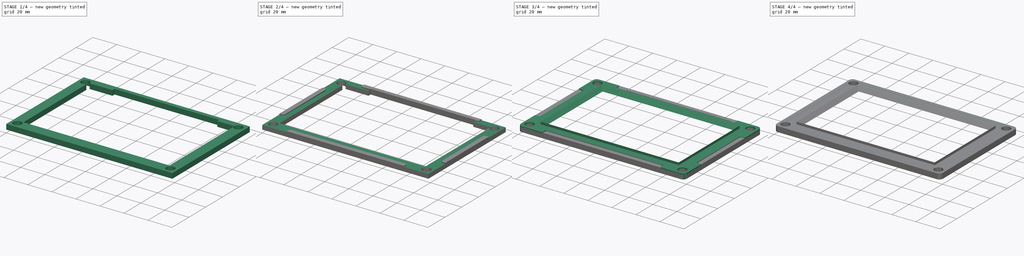
[diagram: build sequence overview — one tinted view per stage of 4, left to right]
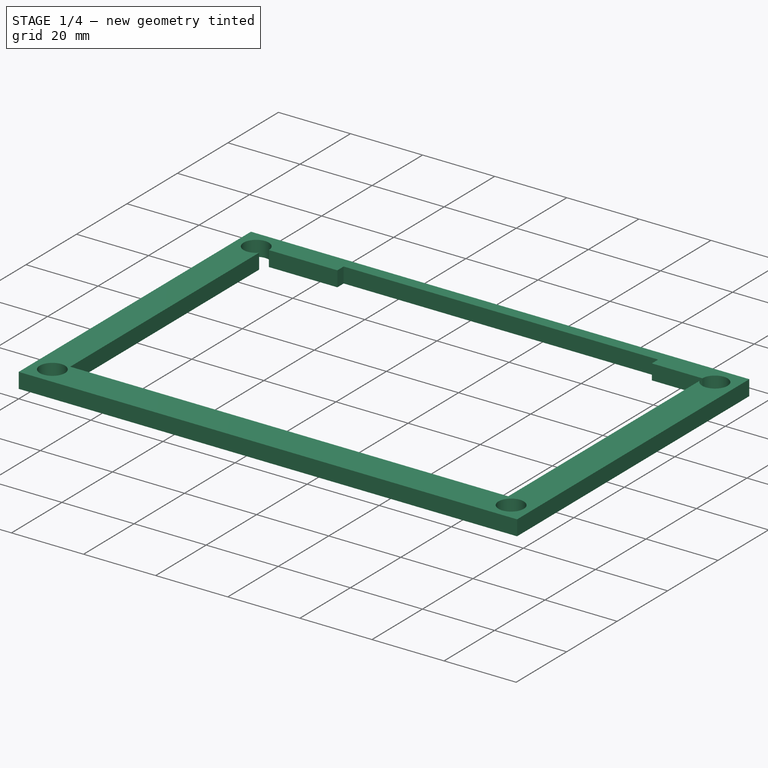
[diagram: stage 1 of 4 — iso view after this stage's code; geometry added in this stage tinted green]
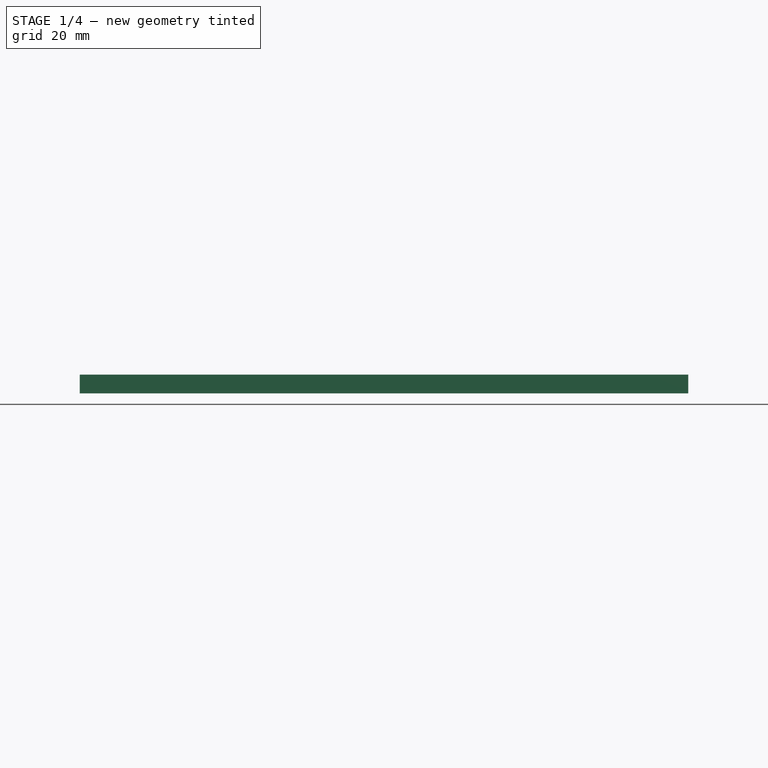
[diagram: stage 1 of 4 — front view after this stage's code; geometry added in this stage tinted green]
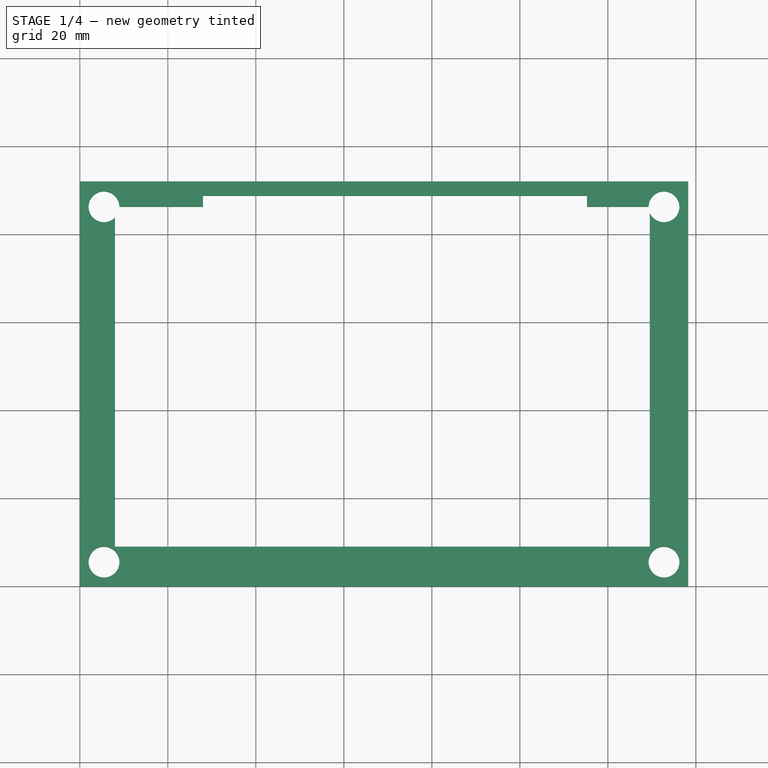
[diagram: stage 1 of 4 — top view after this stage's code; geometry added in this stage tinted green]
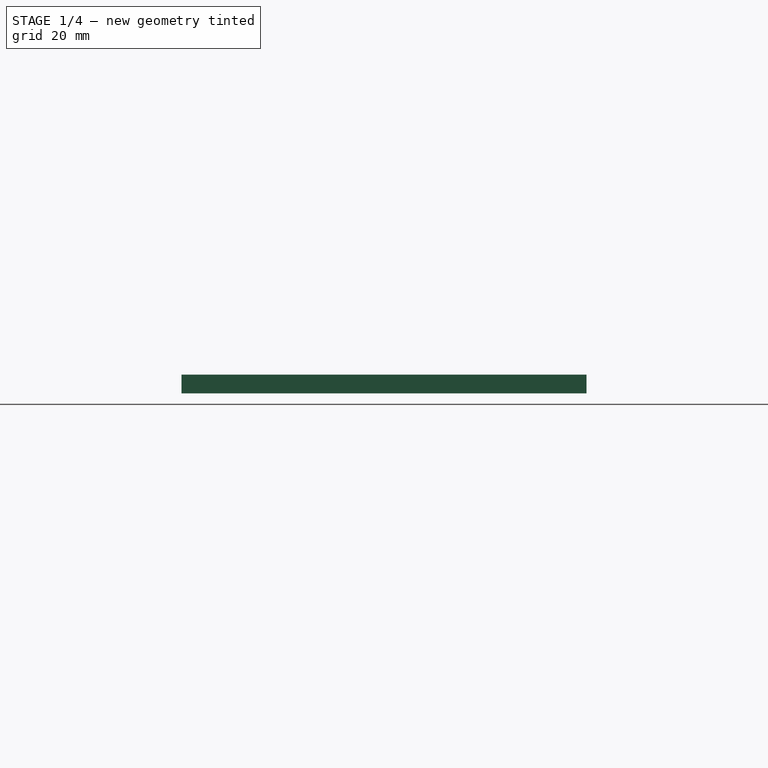
[diagram: stage 1 of 4 — right view after this stage's code; geometry added in this stage tinted green]
FCSTD DOCUMENT  (FreeCAD 0.17R13662 (Git))
Label: LCD_center_v0.2
License: CreativeCommons Attribution-ShareAlike
LicenseURL: http://creativecommons.org/licenses/by-sa/4.0/
objects: App::FeaturePython×4, Part::FeaturePython×3, Sketcher::SketchObject×3, PartDesign::Fillet×3, PartDesign::Pocket×2, PartDesign::Pad×1, PartDesign::Body×1
note: 16 computed .brp shape members not serialized (recipe doc carries the construction recipe); baked Part::Feature solids carry a one-line shape summary decoded from their .brp

FEATURE [App::FeaturePython] circularEdgeConstraint01  label="circularEdgeConstraint01__LCD_bezel_V0_2_01"  # a2plus constraint (typed FeaturePython)
  Object1 = LCD_center_v0_1_01
  Object2 = LCD_bezel_V0_2_01
  SubElement1 = Edge48
  SubElement2 = Edge26
  Type = circularEdge
  directionConstraint = 0
  lockRotation = false
  offset = 0
FEATURE [App::FeaturePython] circularEdgeConstraint01_mirror  label="circularEdgeConstraint01__LCD_center_v0_1_01"  # a2plus constraint (typed FeaturePython)
  Object1 = LCD_center_v0_1_01
  Object2 = LCD_bezel_V0_2_01
  SubElement1 = Edge48
  SubElement2 = Edge26
  Type = circularEdge
  directionConstraint = 0
  lockRotation = false
  offset = 0
FEATURE [Sketcher::SketchObject] Sketch
  MapMode = 5
  Support = -> [XY_Plane]
  sketch-geometry (12):
    g0: LineSegment StartX=0 StartY=0 StartZ=0 EndX=0 EndY=92 EndZ=0
    g1: LineSegment StartX=0 StartY=92 StartZ=0 EndX=138.25 EndY=92 EndZ=0
    g2: LineSegment StartX=28 StartY=86.25 StartZ=0 EndX=8 EndY=86.25 EndZ=0
    g3: LineSegment StartX=8 StartY=86.25 StartZ=0 EndX=8 EndY=9 EndZ=0
    g4: LineSegment StartX=8 StartY=9 StartZ=0 EndX=129.5 EndY=9 EndZ=0
    g5: LineSegment StartX=129.5 StartY=9 StartZ=0 EndX=129.5 EndY=86.25 EndZ=0
    g6: LineSegment StartX=129.5 StartY=86.25 StartZ=0 EndX=115.25 EndY=86.25 EndZ=0
    g7: LineSegment StartX=138.25 StartY=92 StartZ=0 EndX=138.25 EndY=0 EndZ=0
    g8: LineSegment StartX=138.25 StartY=0 StartZ=0 EndX=0 EndY=0 EndZ=0
    g9: LineSegment StartX=28 StartY=86.25 StartZ=0 EndX=28 EndY=88.75 EndZ=0
    g10: LineSegment StartX=28 StartY=88.75 StartZ=0 EndX=115.25 EndY=88.75 EndZ=0
    g11: LineSegment StartX=115.25 StartY=88.75 StartZ=0 EndX=115.25 EndY=86.25 EndZ=0
  constraints (35):
    c: Coincident(g0,g1)
    c: Coincident(g2,g3)
    c: Coincident(g3,g4)
    c: Coincident(g4,g5)
    c: Coincident(g5,g6)
    c: Coincident(g7,g8)
    c: Coincident(g0,g8)
    c: Coincident(g0,g-1)
    c: Vertical(g0)
    c: Horizontal(g8)
    c: Horizontal(g4)
    c: Horizontal(g2)
    c: Horizontal(g1)
    c: Horizontal(g6)
    c: Vertical(g7)
    c: Vertical(g5)
    c: Vertical(g3)
    c: DistanceY(g0,g0) = 92
    c: DistanceY(g-1,g3) = 9
    c: DistanceY(g3,g3) = 77.25
    c: DistanceX(g3) = 8
    c: DistanceX(g4,g4) = 121.5
    c: Equal(g5,g3)
    c: DistanceX(g7) = 138.25
    c: DistanceX(g6,g6) = 14.25
    c: DistanceX(g2,g2) = 20
    c: Coincident(g1,g7)
    c: Coincident(g9,g10)
    c: Coincident(g10,g11)
    c: Coincident(g6,g11)
    c: Coincident(g2,g9)
    c: Vertical(g9)
    c: Vertical(g11)
    c: Horizontal(g10)
    c: DistanceY(g11,g11) = 2.5
FEATURE [PartDesign::Pad] Pad
  Length = 0.75
  Length2 = 3.5
  Profile = -> Sketch
  Type = 4
FEATURE [App::FeaturePython] circularEdgeConstraint02  label="circularEdgeConstraint02__LCD_center_v0_1_01"  # a2plus constraint (typed FeaturePython)
  Object1 = LCD_bezel_V0_3_01
  Object2 = LCD_center_v0_1_01
  SubElement1 = Edge47
  SubElement2 = Edge47
  Type = circularEdge
  directionConstraint = 0
  lockRotation = false
  offset = 0
FEATURE [App::FeaturePython] circularEdgeConstraint02_mirror  label="circularEdgeConstraint02__LCD_bezel_V0_3_01"  # a2plus constraint (typed FeaturePython)
  Object1 = LCD_bezel_V0_3_01
  Object2 = LCD_center_v0_1_01
  SubElement1 = Edge47
  SubElement2 = Edge47
  Type = circularEdge
  directionConstraint = 0
  lockRotation = false
  offset = 0
FEATURE [PartDesign::Pocket] Pocket
  BaseFeature = -> Pad
  Length = 5
  Length2 = 100
  Profile = -> Sketch001
  Type = 0
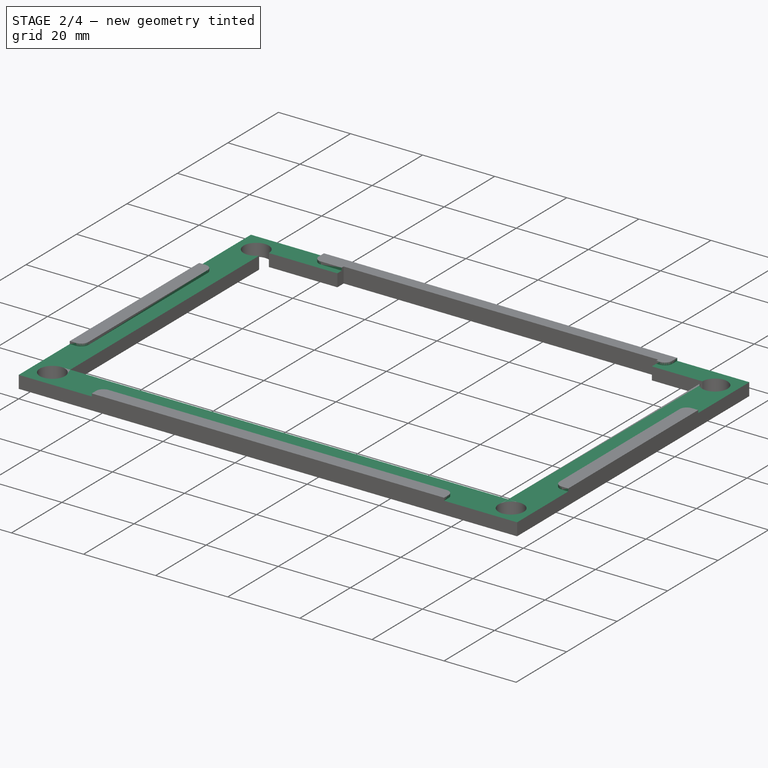
[diagram: stage 2 of 4 — iso view after this stage's code; geometry added in this stage tinted green]
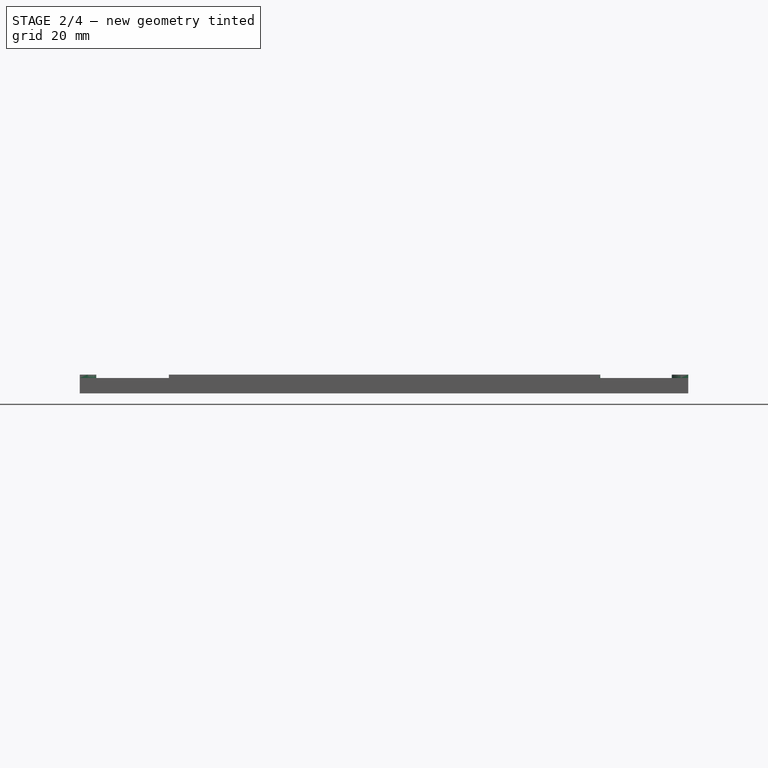
[diagram: stage 2 of 4 — front view after this stage's code; geometry added in this stage tinted green]
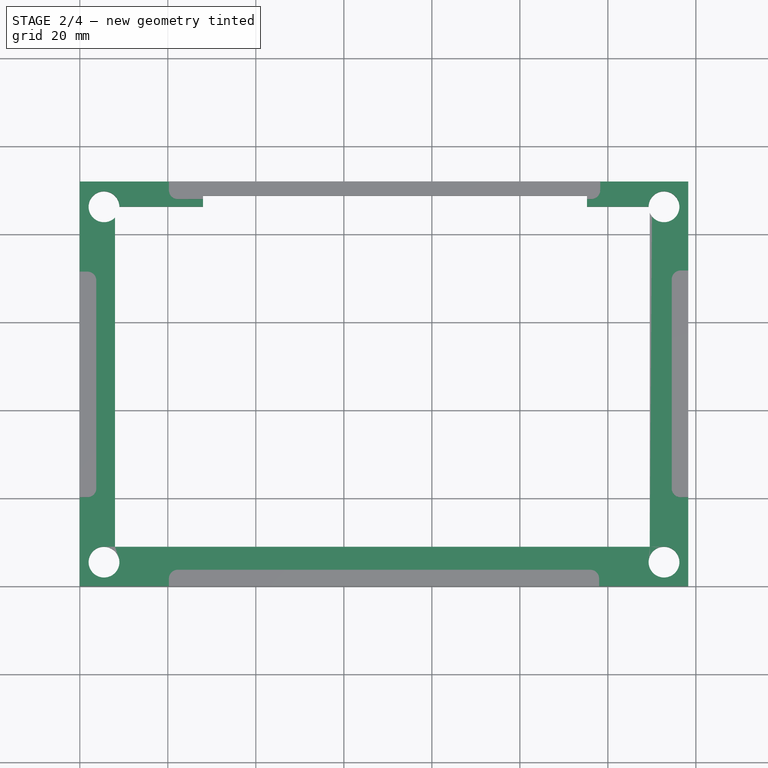
[diagram: stage 2 of 4 — top view after this stage's code; geometry added in this stage tinted green]
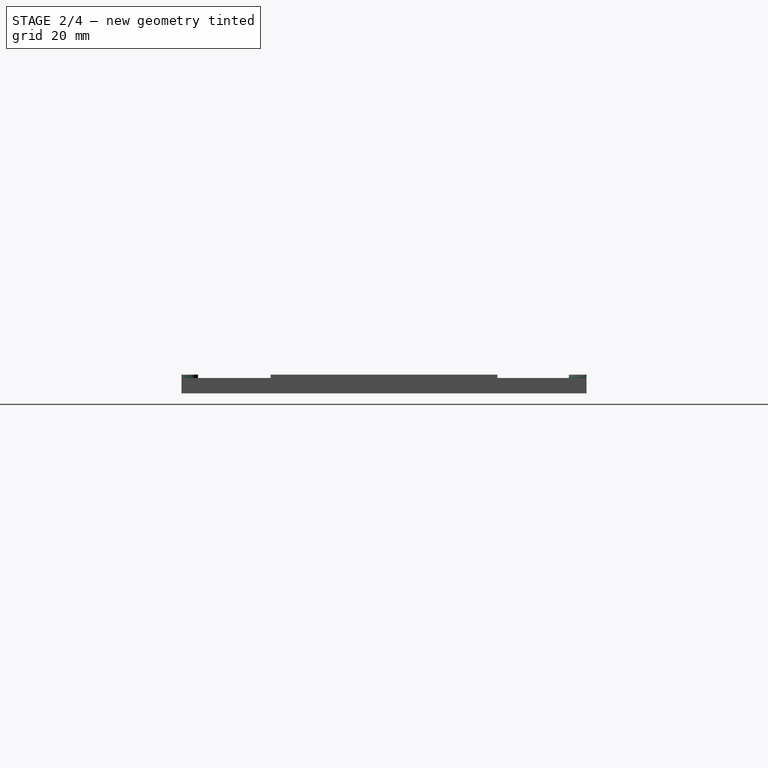
[diagram: stage 2 of 4 — right view after this stage's code; geometry added in this stage tinted green]
FEATURE [PartDesign::Pocket] Pocket001
  BaseFeature = -> Pocket
  Length = 0.75
  Length2 = 100
  Profile = -> Sketch002
  Type = 0
FEATURE [PartDesign::Fillet] Fillet
  Base = -> Pocket001 [Edge96,Edge64,Edge102,Edge98,Edge103,Edge90,Edge95,Edge60]
  BaseFeature = -> Pocket001
  Radius = 2
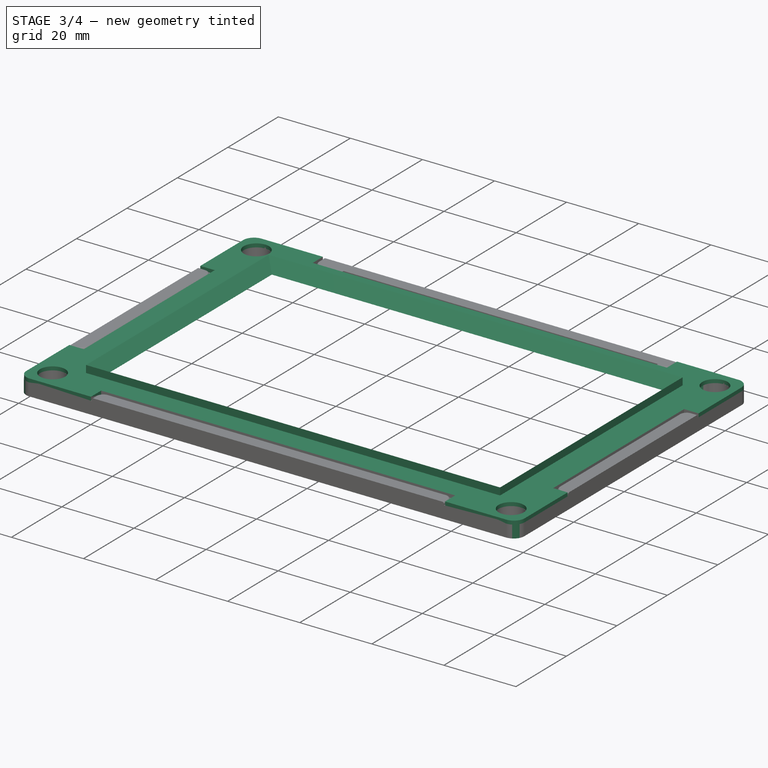
[diagram: stage 3 of 4 — iso view after this stage's code; geometry added in this stage tinted green]
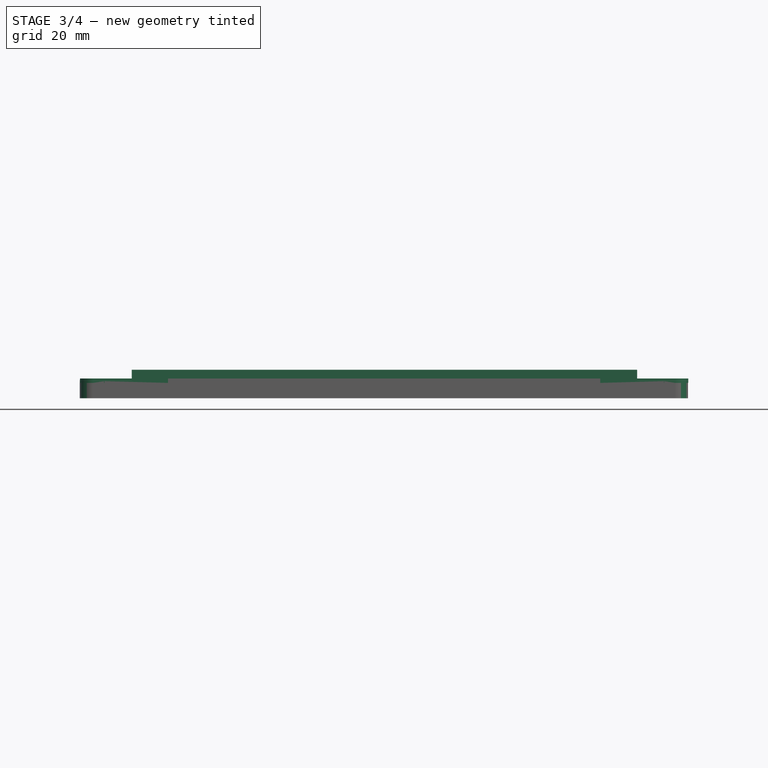
[diagram: stage 3 of 4 — front view after this stage's code; geometry added in this stage tinted green]
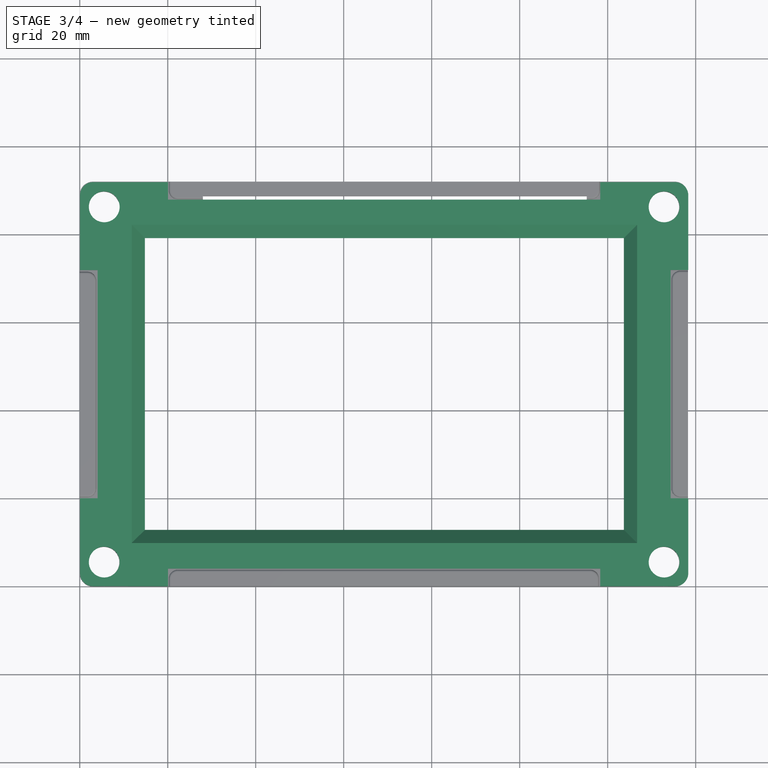
[diagram: stage 3 of 4 — top view after this stage's code; geometry added in this stage tinted green]
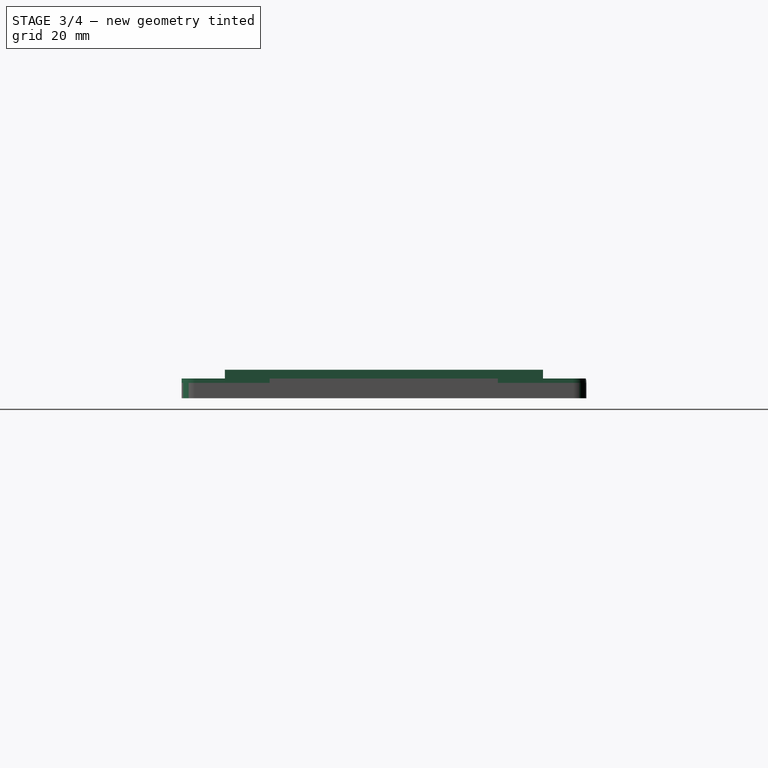
[diagram: stage 3 of 4 — right view after this stage's code; geometry added in this stage tinted green]
FEATURE [Sketcher::SketchObject] Sketch001
  MapMode = 5
  Placement = pos=(0,0,0.75) rot=(0,0,1;0rad)
  Support = -> [Pad]
  sketch-geometry (8):
    g0: LineSegment [constr] StartX=5.5 StartY=86.25 StartZ=0 EndX=132.75 EndY=86.25 EndZ=0
    g1: LineSegment [constr] StartX=132.75 StartY=86.25 StartZ=0 EndX=132.75 EndY=5.5 EndZ=0
    g2: LineSegment [constr] StartX=132.75 StartY=5.5 StartZ=0 EndX=5.5 EndY=5.5 EndZ=0
    g3: LineSegment [constr] StartX=5.5 StartY=5.5 StartZ=0 EndX=5.5 EndY=86.25 EndZ=0
    g4: Circle CenterX=5.5 CenterY=86.25 CenterZ=0 NormalX=0 NormalY=0 NormalZ=1 AngleXU=0 Radius=3.5
    g5: Circle CenterX=132.75 CenterY=86.25 CenterZ=0 NormalX=0 NormalY=0 NormalZ=1 AngleXU=0 Radius=3.5
    g6: Circle CenterX=132.75 CenterY=5.5 CenterZ=0 NormalX=0 NormalY=0 NormalZ=1 AngleXU=0 Radius=3.5
    g7: Circle CenterX=5.5 CenterY=5.5 CenterZ=0 NormalX=0 NormalY=0 NormalZ=1 AngleXU=0 Radius=3.5
  constraints (20):
    c: Coincident(g0,g1)
    c: Coincident(g1,g2)
    c: Coincident(g2,g3)
    c: Coincident(g3,g0)
    c: Horizontal(g0)
    c: Horizontal(g2)
    c: Vertical(g1)
    c: Vertical(g3)
    c: Coincident(g2,g7)
    c: DistanceX(g2) = 5.5
    c: DistanceY(g2) = 5.5
    c: Radius(g7) = 3.5
    c: Coincident(g1,g6)
    c: DistanceX(g2,g2) = 127.25
    c: Equal(g6,g7)
    c: Coincident(g0,g4)
    c: DistanceY(g3,g3) = 80.75
    c: Coincident(g0,g5)
    c: Equal(g5,g4)
    c: Equal(g4,g7)
FEATURE [Sketcher::SketchObject] Sketch002
  MapMode = 5
  Placement = pos=(0,0,0.75) rot=(0,0,1;0rad)
  sketch-geometry (20):
    g0: LineSegment StartX=20.25 StartY=92 StartZ=0 EndX=20.25 EndY=88 EndZ=0
    g1: LineSegment StartX=20.25 StartY=88 StartZ=0 EndX=118.25 EndY=88 EndZ=0
    g2: LineSegment StartX=118.25 StartY=88 StartZ=0 EndX=118.25 EndY=92 EndZ=0
    g3: LineSegment StartX=118.25 StartY=92 StartZ=0 EndX=138.5 EndY=92 EndZ=0
    g4: LineSegment StartX=138.5 StartY=92 StartZ=0 EndX=138.5 EndY=71.75 EndZ=0
    g5: LineSegment StartX=138.5 StartY=71.75 StartZ=0 EndX=134.5 EndY=71.75 EndZ=0
    g6: LineSegment StartX=134.5 StartY=71.75 StartZ=0 EndX=134.5 EndY=20.25 EndZ=0
    g7: LineSegment StartX=134.5 StartY=20.25 StartZ=0 EndX=138.5 EndY=20.25 EndZ=0
    g8: LineSegment StartX=138.5 StartY=20.25 StartZ=0 EndX=138.5 EndY=0 EndZ=0
    g9: LineSegment StartX=138.5 StartY=0 StartZ=0 EndX=118 EndY=0 EndZ=0
    g10: LineSegment StartX=118 StartY=0 StartZ=0 EndX=118 EndY=3.75 EndZ=0
    g11: LineSegment StartX=118 StartY=3.75 StartZ=0 EndX=20.25 EndY=3.75 EndZ=0
    g12: LineSegment StartX=20.25 StartY=3.75 StartZ=0 EndX=20.25 EndY=0 EndZ=0
    g13: LineSegment StartX=20.25 StartY=0 StartZ=0 EndX=0 EndY=0 EndZ=0
    g14: LineSegment StartX=0 StartY=0 StartZ=0 EndX=0 EndY=20.25 EndZ=0
    g15: LineSegment StartX=0 StartY=20.25 StartZ=0 EndX=3.75 EndY=20.25 EndZ=0
    g16: LineSegment StartX=3.75 StartY=20.25 StartZ=0 EndX=3.75 EndY=71.5 EndZ=0
    g17: LineSegment StartX=3.75 StartY=71.5 StartZ=0 EndX=0 EndY=71.5 EndZ=0
    g18: LineSegment StartX=0 StartY=71.5 StartZ=0 EndX=0 EndY=92 EndZ=0
    g19: LineSegment StartX=0 StartY=92 StartZ=0 EndX=20.25 EndY=92 EndZ=0
  constraints (59):
    c: Coincident(g0,g1)
    c: Coincident(g1,g2)
    c: Coincident(g2,g3)
    c: Coincident(g3,g4)
    c: Coincident(g4,g5)
    c: Coincident(g5,g6)
    c: Coincident(g6,g7)
    c: Coincident(g7,g8)
    c: Coincident(g8,g9)
    c: Coincident(g9,g10)
    c: Coincident(g10,g11)
    c: Coincident(g11,g12)
    c: Coincident(g12,g13)
    c: Coincident(g13,g14)
    c: Coincident(g14,g15)
    c: Coincident(g15,g16)
    c: Coincident(g16,g17)
    c: Coincident(g17,g18)
    c: Coincident(g18,g19)
    c: Coincident(g0,g19)
    c: Coincident(g13,g-1)
    c: Vertical(g14)
    c: DistanceY(g14,g14) = 20.25
    c: Horizontal(g15)
    c: DistanceX(g15,g15) = 3.75
    c: Vertical(g16)
    c: Horizontal(g17)
    c: DistanceY(g16,g16) = 51.25
    c: PointOnObject(g17,g-2)
    c: Vertical(g18)
    c: Horizontal(g19)
    c: Vertical(g0)
    c: DistanceY(g18,g18) = 20.5
    c: DistanceX(g19,g19) = 20.25
    c: DistanceY(g0,g0) = 4
    c: Horizontal(g1)
    c: Vertical(g2)
    c: Horizontal(g3)
    c: DistanceX(g1,g1) = 98
    c: Equal(g2,g0)
    c: DistanceX(g3,g3) = 20.25
    c: Vertical(g4)
    c: Horizontal(g5)
    c: DistanceY(g4,g4) = 20.25
    c: DistanceX(g5,g5) = 4
    c: Vertical(g6)
    c: Vertical(g8)
    c: Horizontal(g7)
    c: Horizontal(g9)
    c: Horizontal(g11)
    c: Vertical(g10)
    c: Vertical(g12)
    c: Horizontal(g13)
    c: PointOnObject(g9,g-1)
    c: DistanceX(g8) = 138.5
    c: Equal(g8,g14)
    c: DistanceX(g13,g13) = 20.25
    c: DistanceY(g10,g10) = 3.75
    c: DistanceX(g11,g11) = 97.75
FEATURE [Part::FeaturePython] LCD_bezel_V0_3_01  # a2plus imported part (geometry in sourceFile) (typed FeaturePython)
  Placement = pos=(0.07,0,0) rot=(0,0,1;0rad)
  fixedPosition = false
  sourceFile = <userpath>/Projects/taz-quiver/production_parts/printed_parts/lcd_bezel/LCD_bezel_V0.3.fcstd
  timeLastImport = 1.54759e+09
  updateColors = true
FEATURE [PartDesign::Fillet] Fillet001
  Base = -> Fillet [Edge48,Edge51,Edge72,Edge55,Edge102,Edge95,Edge83,Edge80]
  BaseFeature = -> Fillet
  Radius = 3
FEATURE [PartDesign::Fillet] Fillet002
  Base = -> Fillet001 [Edge137,Edge146,Edge71,Edge77,Edge103]
  BaseFeature = -> Fillet001
  Radius = 0.5
FEATURE [PartDesign::Body] Body
  Group = -> [Sketch,Pad,Sketch001,Sketch002,Pocket,Pocket001,Fillet,Fillet001,Fillet002]
  Origin = -> Origin
  Tip = -> Fillet002
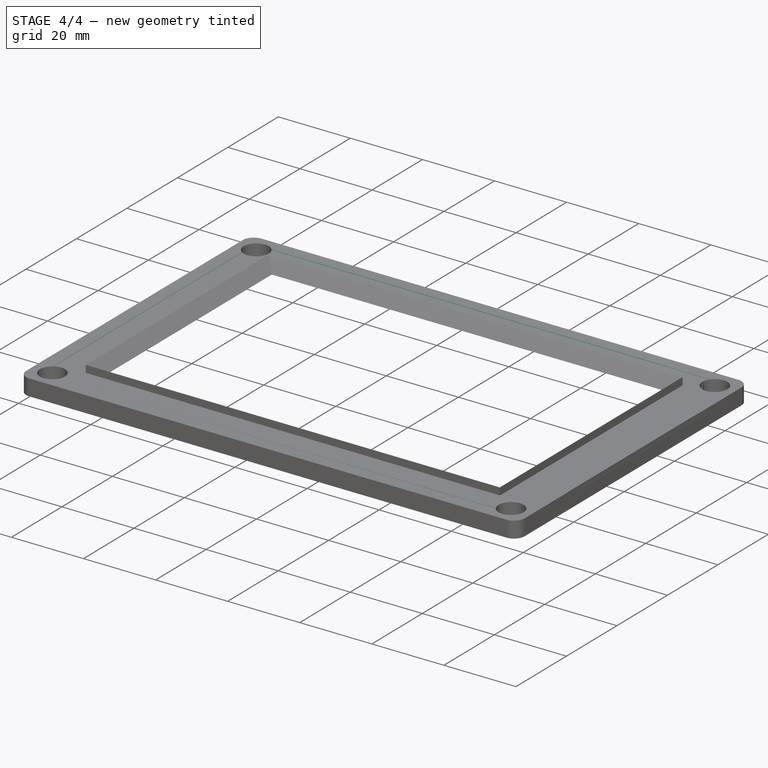
[diagram: stage 4 of 4 — iso view after this stage's code; geometry added in this stage tinted green]
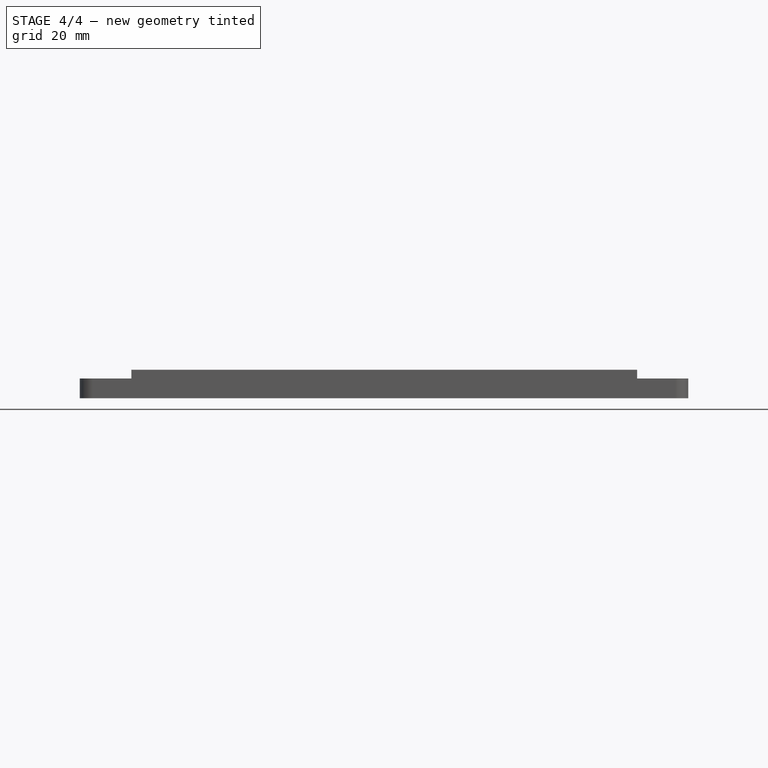
[diagram: stage 4 of 4 — front view after this stage's code; geometry added in this stage tinted green]
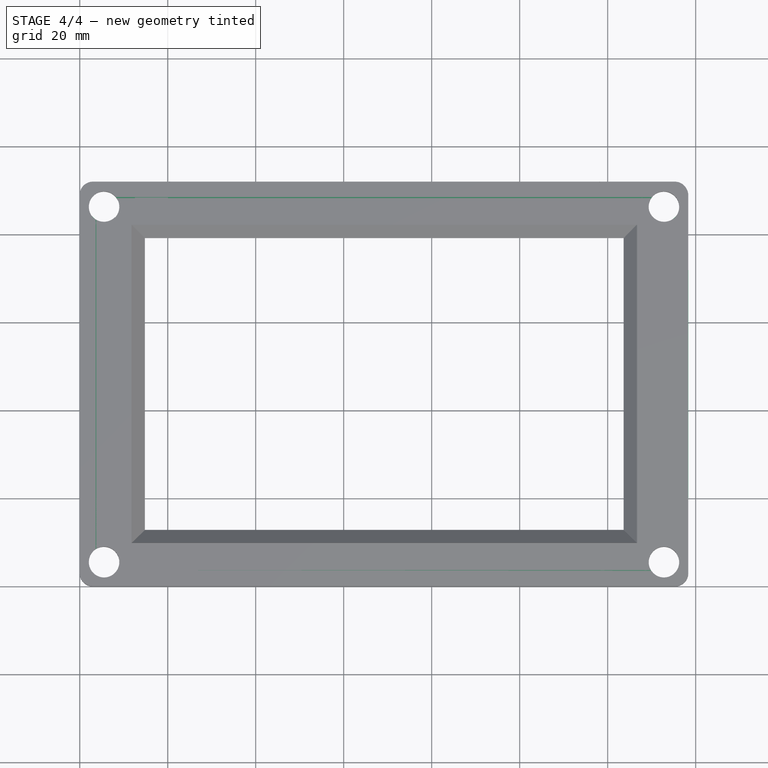
[diagram: stage 4 of 4 — top view after this stage's code; geometry added in this stage tinted green]
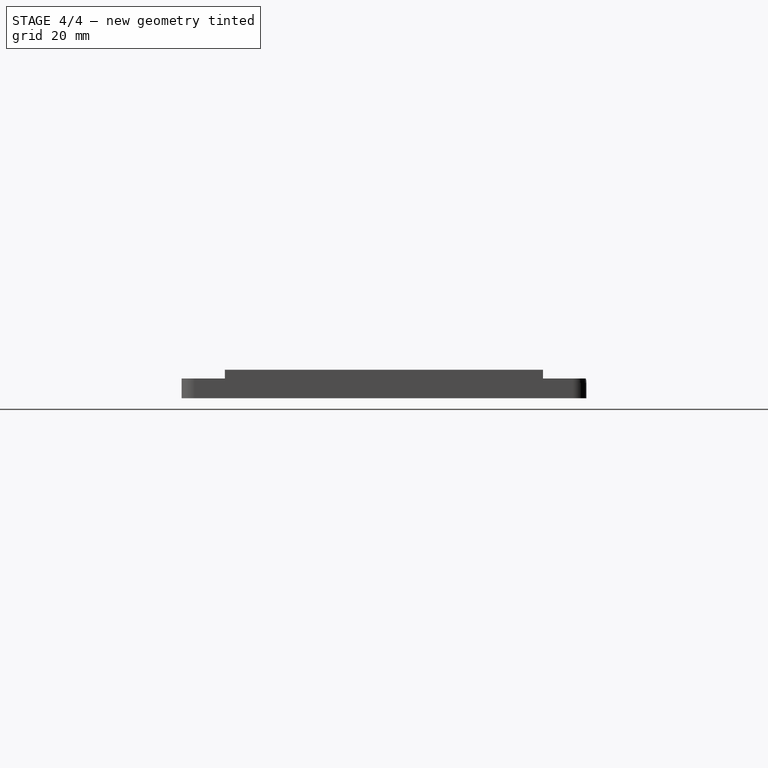
[diagram: stage 4 of 4 — right view after this stage's code; geometry added in this stage tinted green]
FEATURE [Part::FeaturePython] LCD_bezel_V0_2_01  # a2plus imported part (geometry in sourceFile) (typed FeaturePython)
  fixedPosition = true
  sourceFile = <userpath>/Projects/taz-quiver/production_parts/printed_parts/lcd_bezel/LCD_bezel_V0.2.fcstd
  timeLastImport = 1.54748e+09
  updateColors = true
FEATURE [Part::FeaturePython] LCD_center_v0_1_01  # a2plus imported part (geometry in sourceFile) (typed FeaturePython)
  Placement = pos=(0,0,-3.5) rot=(0,0,1;0rad)
  fixedPosition = false
  sourceFile = <userpath>/Projects/taz-quiver/production_parts/printed_parts/lcd_center/LCD_center_v0.1.fcstd
  timeLastImport = 1.54748e+09
  updateColors = true
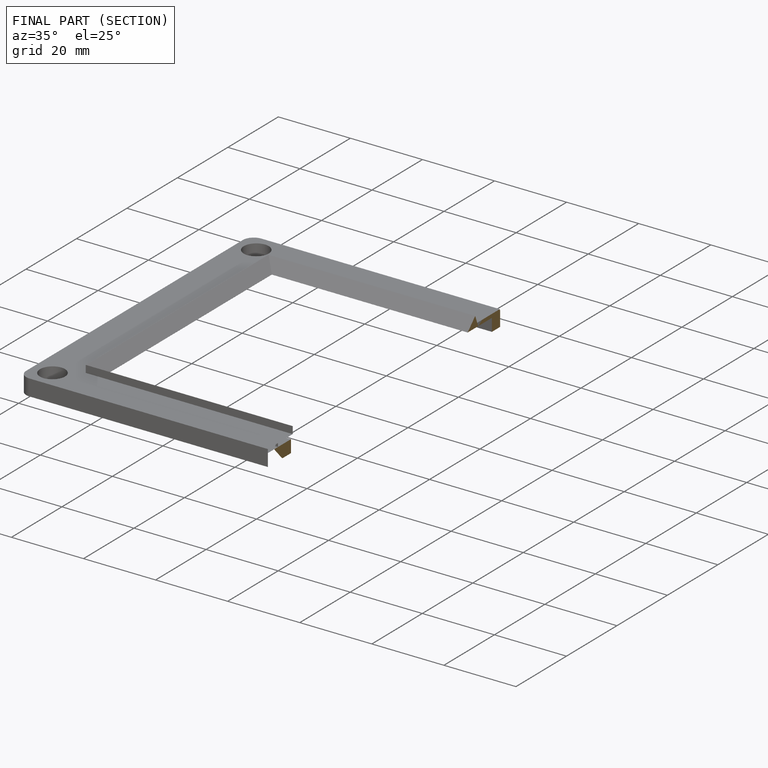
[diagram: finished part — half-section view (interior)]
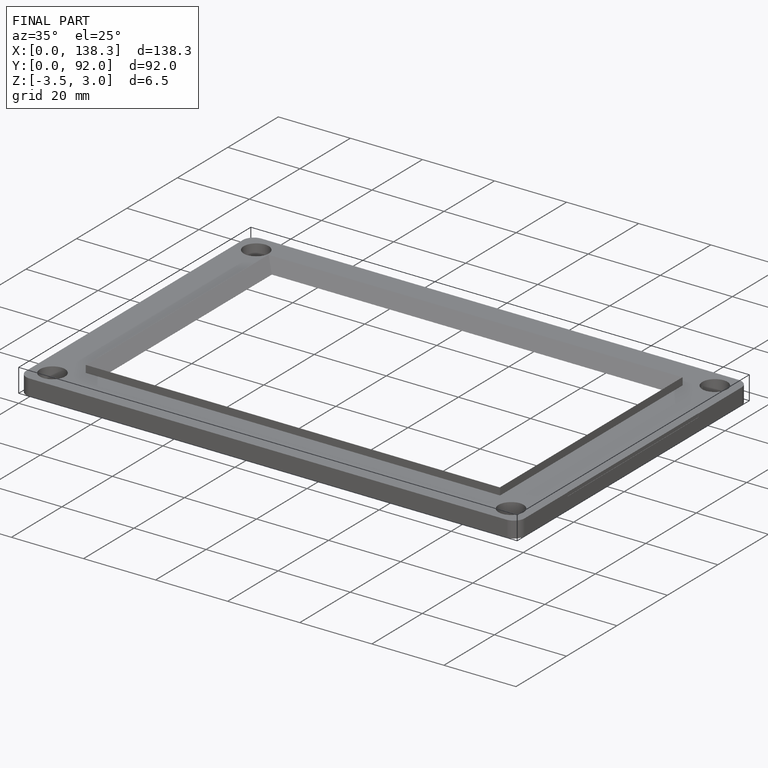
[diagram: finished part — iso view with bounding-box wireframe]
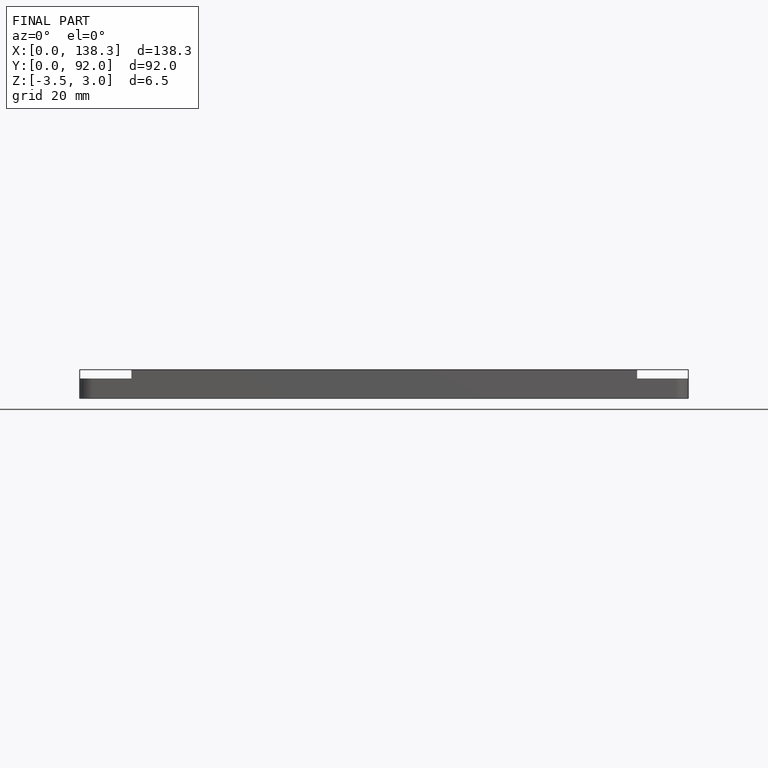
[diagram: finished part — front view with bounding-box wireframe]
